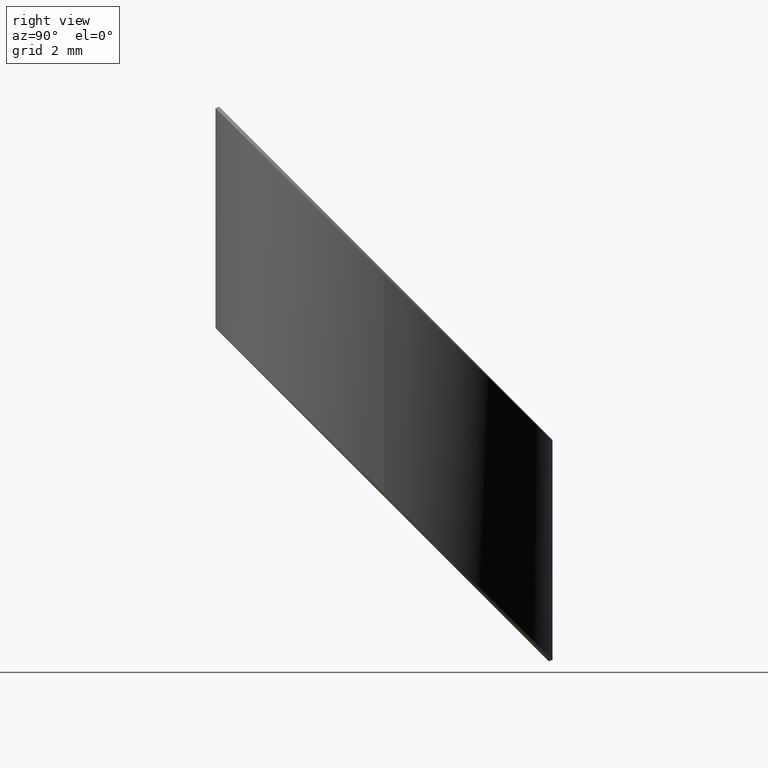
[diagram: clean part render]
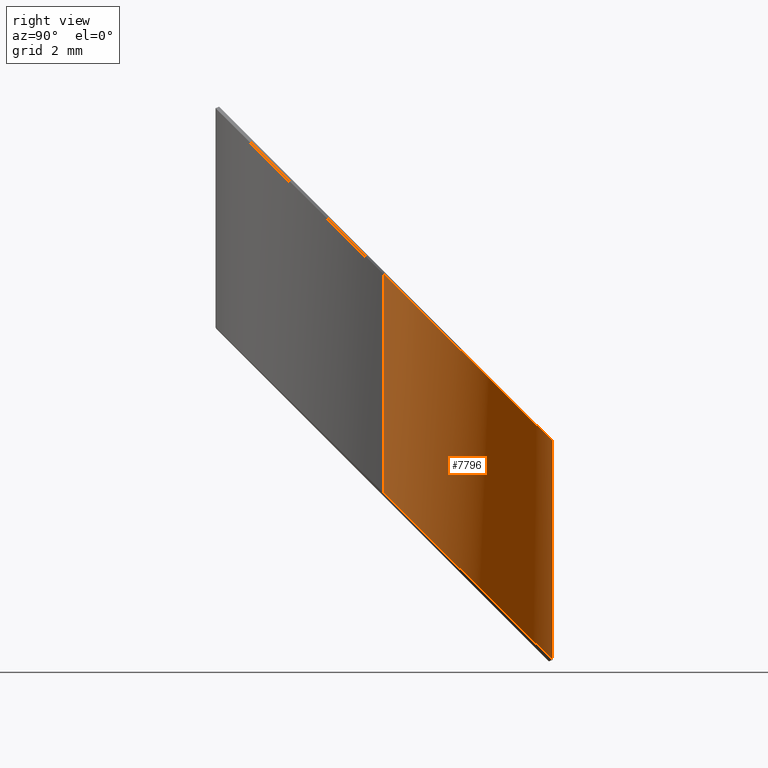
[diagram: same view with one face highlighted and labeled with its STEP entity id]
A machine part, right view. The second image highlights one B-rep face of the part: STEP entity #7796.
In plain terms, the highlighted cylindrical surface (partial cylindrical patch) has radius 6.35 mm, axis along (-0, -0, -1).
Its self-contained STEP definition (entity closure, byte-faithful):
#20 = CARTESIAN_POINT ( 'NONE',  ( 0.1939130182864091900, 0.1577936152862299300, -0.3181418424088710600 ) ) ;
#27 = CARTESIAN_POINT ( 'NONE',  ( -0.1865628848368374200, 0.1665037659775580600, -0.001906112909971192300 ) ) ;
#59 = CARTESIAN_POINT ( 'NONE',  ( 0.1455692265297764400, 0.2032578004067893700, -0.3630102338784608800 ) ) ;
#66 = CARTESIAN_POINT ( 'NONE',  ( -0.1406096565377591400, 0.2067200746838224700, -0.04159564061058928400 ) ) ;
#103 = CARTESIAN_POINT ( 'NONE',  ( 0.03268739277288631300, 0.2483958628721561800, -0.4075570286091403900 ) ) ;
#114 = CARTESIAN_POINT ( 'NONE',  ( -1.512393935234668100E-017, 0.2500000000000001100, -0.08430848201719966200 ) ) ;
#425 = CARTESIAN_POINT ( 'NONE',  ( -0.1031469960265959500, 0.2277661747172334300, -0.3871974972479909100 ) ) ;
#473 = CARTESIAN_POINT ( 'NONE',  ( -0.1617131474373538200, 0.1906963413800108200, -0.3506134675923032700 ) ) ;
#520 = CARTESIAN_POINT ( 'NONE',  ( -0.2019400651408909700, 0.1473919718795792300, -0.3078763479514360900 ) ) ;
#561 = CARTESIAN_POINT ( 'NONE',  ( -0.2241540554442816900, 0.1107776717687900800, -0.2717417401511737500 ) ) ;
#590 = CARTESIAN_POINT ( 'NONE',  ( 0.01638314262248125400, 0.2495960443857892000, -0.08390977447499792200 ) ) ;
#610 = CARTESIAN_POINT ( 'NONE',  ( -0.2379963737949823400, 0.07654278523115459800, -0.2379556172204163900 ) ) ;
#643 = CARTESIAN_POINT ( 'NONE',  ( 0.1214209869862752400, 0.2185711477258786800, -0.05329145924634658800 ) ) ;
#662 = CARTESIAN_POINT ( 'NONE',  ( -0.2449883379168610600, 0.04980953959337251100, -0.2115726736345572300 ) ) ;
#692 = CARTESIAN_POINT ( 'NONE',  ( 0.1738280830776182400, 0.1796887408164880900, -0.01491846240501295900 ) ) ;
#710 = CARTESIAN_POINT ( 'NONE',  ( -0.2487423972882221200, 0.02504581733047150200, -0.1871334305270241400 ) ) ;
#738 = CARTESIAN_POINT ( 'NONE',  ( 0.2067020117914585600, 0.1406248883579020400, 0.02363351343316443300 ) ) ;
#755 = CARTESIAN_POINT ( 'NONE',  ( -0.2498989462178704800, 0.007116983085845101300, -0.1694395139431914300 ) ) ;
#792 = CARTESIAN_POINT ( 'NONE',  ( 0.2293279632564741400, 0.09954790935341992200, 0.06417231798856891400 ) ) ;
#843 = CARTESIAN_POINT ( 'NONE',  ( 0.2398109979389381200, 0.07067263526987026300, 0.09266916737382478700 ) ) ;
#854 = CARTESIAN_POINT ( 'NONE',  ( 0.2497210451207848600, 0.01180908989495714800, -0.1740701405427429700 ) ) ;
#884 = CARTESIAN_POINT ( 'NONE',  ( 0.2461271723671875600, 0.04391791206060902100, 0.1190733853763258100 ) ) ;
#895 = CARTESIAN_POINT ( 'NONE',  ( 0.2475706317967767400, 0.03477094359615235500, -0.1967311071907940600 ) ) ;
#907 = CARTESIAN_POINT ( 'NONE',  ( -0.2473726905152857100, 0.03615298972611003700, 0.1267365169911640300 ) ) ;
#928 = CARTESIAN_POINT ( 'NONE',  ( 0.2491440030876736800, 0.02077135068085946000, 0.1419166855139688800 ) ) ;
#943 = CARTESIAN_POINT ( 'NONE',  ( 0.2427464961914776200, 0.05978616990480096300, -0.2214185670680082800 ) ) ;
#953 = CARTESIAN_POINT ( 'NONE',  ( -0.2419961646997924300, 0.06278766068105243200, 0.1004508410906167600 ) ) ;
#979 = CARTESIAN_POINT ( 'NONE',  ( 0.2499226135237936100, 0.006220491146404503800, 0.1562768042413336400 ) ) ;
#990 = CARTESIAN_POINT ( 'NONE',  ( -0.2499331683993758500, 0.005780963863087154800, 0.1567105746605423900 ) ) ;
#1000 = CARTESIAN_POINT ( 'NONE',  ( 0.2336009041782088300, 0.08909498339762415800, -0.2503433299019479100 ) ) ;
#1007 = CARTESIAN_POINT ( 'NONE',  ( -0.2317325270977309600, 0.09381396308522034500, 0.06983107077840390600 ) ) ;
#1033 = CARTESIAN_POINT ( 'NONE',  ( -0.2489501389028510900, 0.02289565929758648500, 0.1398201479928803400 ) ) ;
#1038 = CARTESIAN_POINT ( 'NONE',  ( 0.2132936663267003300, 0.1304223722701445800, -0.2911290704508509000 ) ) ;
#1047 = CARTESIAN_POINT ( 'NONE',  ( -0.2100629158671886200, 0.1355528493980048500, 0.02863913510831414900 ) ) ;
#1085 = CARTESIAN_POINT ( 'NONE',  ( 0.1865628848344501000, 0.1665037659802264500, -0.3267376887690081100 ) ) ;
#1091 = CARTESIAN_POINT ( 'NONE',  ( -0.1796066712189219900, 0.1739124843623038900, -0.009217887730264823600 ) ) ;
#1137 = CARTESIAN_POINT ( 'NONE',  ( 0.1406096565381898500, 0.2067200746835345700, -0.3664272164666249100 ) ) ;
#1147 = CARTESIAN_POINT ( 'NONE',  ( -0.1319837973409563600, 0.2123605669000091000, -0.04716216268223175100 ) ) ;
#1187 = CARTESIAN_POINT ( 'NONE',  ( -1.539072138297795800E-017, 0.2500000000000001100, -0.4091400578733957500 ) ) ;
#1515 = CARTESIAN_POINT ( 'NONE',  ( -0.1142773814286646400, 0.2223894844472616400, -0.3818913009436333300 ) ) ;
#1553 = CARTESIAN_POINT ( 'NONE',  ( -0.1708425446996163500, 0.1825296440669847700, -0.3425536670647095200 ) ) ;
#1602 = CARTESIAN_POINT ( 'NONE',  ( -0.2055252598055119200, 0.1423392022114233200, -0.3028898798967443200 ) ) ;
#1651 = CARTESIAN_POINT ( 'NONE',  ( -0.2280736985650150300, 0.1024206213420636300, -0.2634942375594743200 ) ) ;
#1681 = CARTESIAN_POINT ( 'NONE',  ( 0.04078235764173276900, 0.2467856742462387100, -0.08113622911537246600 ) ) ;
#1699 = CARTESIAN_POINT ( 'NONE',  ( -0.2389471269300531300, 0.07352043633567383100, -0.2349728902590148800 ) ) ;
#1708 = EDGE_CURVE ( 'NONE', #7492, #9793, #7329, .T. ) ;
#1730 = CARTESIAN_POINT ( 'NONE',  ( 0.1319740630390742700, 0.2123371648628849000, -0.04713906383031077300 ) ) ;
#1744 = CARTESIAN_POINT ( 'NONE',  ( -0.2455763544766368700, 0.04686201867805998200, -0.2086637794164712100 ) ) ;
#1780 = CARTESIAN_POINT ( 'NONE',  ( 0.1796166402051059500, 0.1739367503881679200, -0.009241898807147331700 ) ) ;
#1799 = CARTESIAN_POINT ( 'NONE',  ( -0.2489743354909374800, 0.02269545896340257800, -0.1848138710889330700 ) ) ;
#1819 = EDGE_CURVE ( 'NONE', #7492, #3554, #5039, .T. ) ;
#1830 = CARTESIAN_POINT ( 'NONE',  ( 0.2100777179126535900, 0.1355845883325156000, 0.02860774141192444200 ) ) ;
#1851 = CARTESIAN_POINT ( 'NONE',  ( -0.2499176324444323000, 0.006418463523966648000, -0.1687501496564254900 ) ) ;
#1877 = CARTESIAN_POINT ( 'NONE',  ( 0.2305869987499860900, 0.09659522274906422200, 0.06708624679437021100 ) ) ;
#1892 = CARTESIAN_POINT ( 'NONE',  ( 0.2499890269380927200, 0.002555823058630899700, -0.1649380887160701300 ) ) ;
#1920 = CARTESIAN_POINT ( 'NONE',  ( 0.2415962538579925500, 0.06428949797132516000, 0.09896870062222261300 ) ) ;
#1933 = CARTESIAN_POINT ( 'NONE',  ( 0.2495873755207513900, 0.01453631975585638700, -0.1767616365978762800 ) ) ;
#1967 = CARTESIAN_POINT ( 'NONE',  ( 0.2469735746602846100, 0.03878574309921135900, 0.1241382718761019500 ) ) ;
#1972 = VECTOR ( 'NONE', #10336, 39.37007874015748100 ) ;
#1982 = CARTESIAN_POINT ( 'NONE',  ( 0.2473726905157508900, 0.03615298972297392700, -0.1980950588619649600 ) ) ;
#1990 = CARTESIAN_POINT ( 'NONE',  ( -0.2464782918088582200, 0.04190132150371966200, 0.1210635563037069200 ) ) ;
#2015 = CARTESIAN_POINT ( 'NONE',  ( 0.2494826343891964600, 0.01613905698881759600, 0.1464882658031289900 ) ) ;
#2026 = CARTESIAN_POINT ( 'NONE',  ( 0.2419961646979702200, 0.06278766068832714000, -0.2243807347727589100 ) ) ;
#2035 = CARTESIAN_POINT ( 'NONE',  ( -0.2403695769277224600, 0.06872759013235983600, 0.09458875376347541900 ) ) ;
#2060 = CARTESIAN_POINT ( 'NONE',  ( 0.2500000000000001100, 0.002726018428246263300, 0.1597254883019551800 ) ) ;
#2067 = CARTESIAN_POINT ( 'NONE',  ( -0.2499281884146981600, 0.005993395272974331000, 0.1565009244323157000 ) ) ;
#2071 = CARTESIAN_POINT ( 'NONE',  ( 0.2317325270982650300, 0.09381396308390527200, -0.2550005050764904700 ) ) ;
#2080 = CARTESIAN_POINT ( 'NONE',  ( -0.2293504854501309000, 0.09958042992762940200, 0.06414014347067313600 ) ) ;
#2111 = CARTESIAN_POINT ( 'NONE',  ( -0.2488406073480426700, 0.02405006087684922300, 0.1386808549566779200 ) ) ;
#2118 = CARTESIAN_POINT ( 'NONE',  ( 0.2100629158658672800, 0.1355528494000485300, -0.2961924407500158300 ) ) ;
#2129 = CARTESIAN_POINT ( 'NONE',  ( -0.2084480311864483300, 0.1380235868782939700, 0.02620071630900373800 ) ) ;
#2153 = VECTOR ( 'NONE', #4497, 39.37007874015748100 ) ;
#2174 = CARTESIAN_POINT ( 'NONE',  ( 0.1796066712176742600, 0.1739124843635866100, -0.3340494635878815100 ) ) ;
#2181 = CARTESIAN_POINT ( 'NONE',  ( -0.1738416203042318600, 0.1797117702890420600, -0.01494124960925164200 ) ) ;
#2217 = CARTESIAN_POINT ( 'NONE',  ( 0.1319837973396362200, 0.2123605669008295800, -0.3719937385389107700 ) ) ;
#2224 = CARTESIAN_POINT ( 'NONE',  ( -0.1214842966172377200, 0.2185373080231163800, -0.05325802307386286200 ) ) ;
#2277 = ORIENTED_EDGE ( 'NONE', *, *, #5965, .T. ) ;
#2498 = CARTESIAN_POINT ( 'NONE',  ( -1.539072138297795800E-017, 0.2500000000000001100, -0.4091400578733957500 ) ) ;
#2541 = CARTESIAN_POINT ( 'NONE',  ( -0.03262542754643328600, 0.2479963189499022900, -0.4071626758220190400 ) ) ;
#2571 = AXIS2_PLACEMENT_3D ( 'NONE', #3545, #4705, #12247 ) ;
#2580 = CARTESIAN_POINT ( 'NONE',  ( -0.1267359690183612900, 0.2155628111490132400, -0.3751539795364438000 ) ) ;
#2630 = CARTESIAN_POINT ( 'NONE',  ( -0.1753567228434285100, 0.1781966677498454400, -0.3382775511016975500 ) ) ;
#2680 = CARTESIAN_POINT ( 'NONE',  ( -0.2073148243666238200, 0.1397195507351349500, -0.3003046014800647100 ) ) ;
#2725 = CARTESIAN_POINT ( 'NONE',  ( -0.2301554979295760400, 0.09761940258364998300, -0.2587560695365408400 ) ) ;
#2756 = CARTESIAN_POINT ( 'NONE',  ( 0.06478895529499158200, 0.2415957927467245200, -0.07601435136992680500 ) ) ;
#2779 = CARTESIAN_POINT ( 'NONE',  ( -0.2406543351671441600, 0.06777051237940569200, -0.2292982698373420000 ) ) ;
#2812 = CARTESIAN_POINT ( 'NONE',  ( 0.1372127816177834100, 0.2089897939410339800, -0.04383562012389875800 ) ) ;
#2833 = CARTESIAN_POINT ( 'NONE',  ( -0.2467268290574820300, 0.04034595816155753200, -0.2022330612464186000 ) ) ;
#2863 = CARTESIAN_POINT ( 'NONE',  ( 0.1885799220906563300, 0.1641495577649878200, 0.0004171657636240754800 ) ) ;
#2877 = CARTESIAN_POINT ( 'NONE',  ( 0.2500000000000001100, 3.637868835736454700E-016, 0.1624157879280981000 ) ) ;
#2881 = CARTESIAN_POINT ( 'NONE',  ( -0.2493738767674407200, 0.01771201306717580200, -0.1798956342454740800 ) ) ;
#2916 = CARTESIAN_POINT ( 'NONE',  ( 0.2153982946573688400, 0.1269163422982057500, 0.03716259635875802900 ) ) ;
#2928 = CARTESIAN_POINT ( 'NONE',  ( -0.2499581630307558000, 0.004772364811415499300, -0.1671256206133195100 ) ) ;
#2959 = CARTESIAN_POINT ( 'NONE',  ( 0.2328637189455223200, 0.09100456920301872000, 0.07260367570542838900 ) ) ;
#2978 = CARTESIAN_POINT ( 'NONE',  ( 0.2499546688939769900, 0.004792714061995636900, -0.1671456827861532200 ) ) ;
#3013 = CARTESIAN_POINT ( 'NONE',  ( 0.2422507273387055300, 0.06176454042680222500, 0.1014605608589156500 ) ) ;
#3029 = CARTESIAN_POINT ( 'NONE',  ( 0.2492207342004537600, 0.01975022697341182300, -0.1819071440600691900 ) ) ;
#3059 = CARTESIAN_POINT ( 'NONE',  ( 0.2472240787833963600, 0.03715484864352853300, 0.1257477855429232100 ) ) ;
#3072 = CARTESIAN_POINT ( 'NONE',  ( 0.2464782918051241200, 0.04190132152559793200, -0.2037680195739624000 ) ) ;
#3081 = CARTESIAN_POINT ( 'NONE',  ( -0.2455723813363117900, 0.04684494449151610500, 0.1161846615400074200 ) ) ;
#3103 = CARTESIAN_POINT ( 'NONE',  ( 0.2496411516259412800, 0.01339306294960955800, 0.1491982245039477100 ) ) ;
#3118 = CARTESIAN_POINT ( 'NONE',  ( 0.2403695769248804200, 0.06872759014227204600, -0.2302428221025925000 ) ) ;
#3125 = CARTESIAN_POINT ( 'NONE',  ( -0.2395391694659981500, 0.07156873365376381600, 0.09178481536374498400 ) ) ;
#3156 = CARTESIAN_POINT ( 'NONE',  ( -0.2498455345728032900, 0.008888543325631428600, 0.1536437284003701100 ) ) ;
#3162 = CARTESIAN_POINT ( 'NONE',  ( 0.2293504854504650500, 0.09958042992682265800, -0.2606914323847464600 ) ) ;
#3172 = CARTESIAN_POINT ( 'NONE',  ( -0.2250307201209487100, 0.1089282253849077900, 0.05491505805132835400 ) ) ;
#3210 = CARTESIAN_POINT ( 'NONE',  ( 0.2084480311867115400, 0.1380235868778999500, -0.2986308595468464300 ) ) ;
#3216 = CARTESIAN_POINT ( 'NONE',  ( -0.2031601627783386500, 0.1457486925996621100, 0.01857696664793224300 ) ) ;
#3253 = CARTESIAN_POINT ( 'NONE',  ( 0.1738416203044208500, 0.1797117702888531000, -0.3397728254650592100 ) ) ;
#3261 = CARTESIAN_POINT ( 'NONE',  ( -0.1647796033791919200, 0.1880207548358840400, -0.02314125253956856100 ) ) ;
#3298 = CARTESIAN_POINT ( 'NONE',  ( 0.1214842966155940500, 0.2185373080239949300, -0.3780895989307633300 ) ) ;
#3309 = CARTESIAN_POINT ( 'NONE',  ( -0.1105446711949595500, 0.2242690544971155100, -0.05891462273130421800 ) ) ;
#3545 = CARTESIAN_POINT ( 'NONE',  ( 0.0000000000000000000, 0.0000000000000000000, 0.9842519685039370400 ) ) ;
#3554 = VERTEX_POINT ( 'NONE', #7556 ) ;
#3624 = CARTESIAN_POINT ( 'NONE',  ( -0.05676280336633195800, 0.2436069659553765400, -0.4028308354457900100 ) ) ;
#3676 = CARTESIAN_POINT ( 'NONE',  ( -0.1354475824129915400, 0.2101384717645191100, -0.3698007943934765700 ) ) ;
#3720 = CARTESIAN_POINT ( 'NONE',  ( -0.1838133546150479700, 0.1695347021318853500, -0.3297289133892715700 ) ) ;
#3767 = CARTESIAN_POINT ( 'NONE',  ( -0.2122402588753058700, 0.1321771752125723600, -0.2928608905989066900 ) ) ;
#3823 = CARTESIAN_POINT ( 'NONE',  ( -0.2317356518859288500, 0.09382212876980883200, -0.2550085770661421600 ) ) ;
#3831 = CARTESIAN_POINT ( 'NONE',  ( 0.2500000000000001100, 3.061616997868384300E-017, 0.9842519685039370400 ) ) ;
#3851 = CARTESIAN_POINT ( 'NONE',  ( 0.08033627799269314800, 0.2367758762477981400, -0.07125757572096569300 ) ) ;
#3871 = CARTESIAN_POINT ( 'NONE',  ( -0.2419902710685372700, 0.06277724156445320400, -0.2243704419350476000 ) ) ;
#3901 = CARTESIAN_POINT ( 'NONE',  ( 0.1472410859868292200, 0.2021123534736197500, -0.03704817107273601600 ) ) ;
#3916 = CARTESIAN_POINT ( 'NONE',  ( -0.2471356767637236700, 0.03773907416422570700, -0.1996603574432006800 ) ) ;
#3948 = CARTESIAN_POINT ( 'NONE',  ( 0.1919279527743496000, 0.1602021705937943200, 0.004312749638067497500 ) ) ;
#3970 = CARTESIAN_POINT ( 'NONE',  ( -0.2495958673318329200, 0.01422821405401603600, -0.1764575466944604000 ) ) ;
#4007 = CARTESIAN_POINT ( 'NONE',  ( 0.2184785088459647000, 0.1215246083969340100, 0.04248356586998695100 ) ) ;
#4028 = CARTESIAN_POINT ( 'NONE',  ( -0.2500000000000001100, 1.990193948509316800E-016, -0.1624157879280985200 ) ) ;
#4057 = CARTESIAN_POINT ( 'NONE',  ( 0.2346777603753345500, 0.08618246549395502900, 0.07736259121278836500 ) ) ;
#4070 = CARTESIAN_POINT ( 'NONE',  ( 0.2499331683992323200, 0.005780963869266865200, -0.1681210012017511900 ) ) ;
#4100 = CARTESIAN_POINT ( 'NONE',  ( 0.2429866629728030000, 0.05883336991775607600, 0.1043533183363854900 ) ) ;
#4107 = CARTESIAN_POINT ( 'NONE',  ( -0.2499890269382985000, 0.002555823038516065400, 0.1598934871599668700 ) ) ;
#4112 = CARTESIAN_POINT ( 'NONE',  ( 0.2489501389003586900, 0.02289565932444449400, -0.1850114278898181100 ) ) ;
#4143 = CARTESIAN_POINT ( 'NONE',  ( 0.2479771299734699300, 0.03185479260701698500, 0.1309784651767585700 ) ) ;
#4161 = CARTESIAN_POINT ( 'NONE',  ( 0.2455723813343023100, 0.04684494450202556600, -0.2086469143265422800 ) ) ;
#4171 = CARTESIAN_POINT ( 'NONE',  ( -0.2452996667686258800, 0.04825302171953039400, 0.1147950222741817700 ) ) ;
#4199 = CARTESIAN_POINT ( 'NONE',  ( 0.2496877162360042500, 0.01249383757505821400, 0.1500856591488297400 ) ) ;
#4214 = CARTESIAN_POINT ( 'NONE',  ( 0.2395391694667983700, 0.07156873365112570400, -0.2330467604898991100 ) ) ;
#4220 = CARTESIAN_POINT ( 'NONE',  ( -0.2376876969454763100, 0.07753614471080200200, 0.08589562808115651400 ) ) ;
#4253 = CARTESIAN_POINT ( 'NONE',  ( -0.2497427576124240900, 0.01134063492534840100, 0.1512237542733443600 ) ) ;
#4258 = CARTESIAN_POINT ( 'NONE',  ( 0.2250307201215193700, 0.1089282253837287300, -0.2699165178037029600 ) ) ;
#4267 = CARTESIAN_POINT ( 'NONE',  ( -0.2223263702934939200, 0.1143327489885293300, 0.04958120158366852200 ) ) ;
#4305 = CARTESIAN_POINT ( 'NONE',  ( 0.2031601627766810600, 0.1457486926019727600, -0.3062546092103424200 ) ) ;
#4311 = CARTESIAN_POINT ( 'NONE',  ( -0.1976532439752399500, 0.1531024004465943400, 0.01131958689465946600 ) ) ;
#4357 = CARTESIAN_POINT ( 'NONE',  ( 0.1647796033794685900, 0.1880207548356422100, -0.3479728283952299700 ) ) ;
#4364 = CARTESIAN_POINT ( 'NONE',  ( -0.1601983743834444500, 0.1919394834982728900, -0.02700871897961025500 ) ) ;
#4407 = CARTESIAN_POINT ( 'NONE',  ( 0.1105446711974673500, 0.2242690544958794400, -0.3837461985864445400 ) ) ;
#4414 = CARTESIAN_POINT ( 'NONE',  ( -0.09947179219835224100, 0.2293954846709828100, -0.06397392498204591800 ) ) ;
#4497 = DIRECTION ( 'NONE',  ( -0.0000000000000000000, -0.0000000000000000000, -1.000000000000000000 ) ) ;
#4519 = LINE ( 'NONE', #3831, #1972 ) ;
#4589 = CARTESIAN_POINT ( 'NONE',  ( -1.539072138297795800E-017, 0.2500000000000001100, -0.4091400578733957500 ) ) ;
#4609 = B_SPLINE_CURVE_WITH_KNOTS ( 'NONE', 3,
 ( #12461, #13552, #590, #8166, #1681, #9266, #2756, #10356, #3851, #11432, #4952, #12511, #6033, #13595, #7122, #643, #8215, #1730, #9316, #2812, #10403, #3901, #11490, #5002, #12560, #6085, #13656, #7171, #692, #8277, #1780, #9361, #2863, #10459, #3948, #11538, #5055, #12609, #6130, #13707, #7229, #738, #8323, #1830, #9408, #2916, #10511, #4007, #11580, #5103, #12661, #6177, #13752, #7283, #792, #8368, #1877, #9464, #2959, #10556, #4057, #11632, #5147, #12709, #6229, #13800, #7331, #843, #8414, #1920, #9513, #3013, #10595, #4100, #11679, #5191, #12749, #6276, #13849, #7375, #884, #8465, #1967, #9554, #3059, #10645, #4143, #11717, #5238, #12798, #6321, #13893, #7426, #928, #8506, #2015, #9602, #3103, #10690, #4199, #11762, #5279, #12850, #6371, #13937, #7474, #979, #8553, #2060, #9653 ),
 .UNSPECIFIED., .F., .F.,
 ( 4, 2, 2, 2, 2, 2, 2, 2, 1, 2, 2, 1, 2, 2, 1, 2, 2, 1, 1, 2, 2, 2, 1, 2, 2, 2, 1, 2, 2, 2, 1, 2, 2, 1, 2, 2, 1, 2, 2, 1, 1, 2, 2, 1, 1, 2, 2, 1, 1, 2, 2, 1, 1, 1, 2, 2, 2, 1, 1, 2, 2, 1, 1, 1, 2, 2, 4 ),
 ( 0.0000000000000000000, 0.01562499999999997200, 0.03124999999999994400, 0.04687499999999991700, 0.05468749999999989600, 0.06249999999999987500, 0.07031249999999984700, 0.07812499999999983300, 0.08593749999999982000, 0.08984374999999980600, 0.09374999999999977800, 0.1015624999999997400, 0.1054687499999997200, 0.1093749999999996900, 0.1171874999999996100, 0.1210937499999995700, 0.1249999999999995100, 0.1328124999999994700, 0.1367187499999994200, 0.1386718749999994200, 0.1406249999999994200, 0.1484374999999994200, 0.1523437499999994200, 0.1542968749999994200, 0.1562499999999994200, 0.1640624999999994400, 0.1679687499999994200, 0.1699218749999994200, 0.1718749999999994200, 0.1796874999999994400, 0.1835937499999994400, 0.1855468749999994700, 0.1874999999999995000, 0.1914062499999995600, 0.1933593749999995800, 0.1953124999999996100, 0.1992187499999996400, 0.2011718749999996700, 0.2031249999999996900, 0.2070312499999997500, 0.2089843749999997800, 0.2099609374999998100, 0.2109374999999998100, 0.2148437499999998600, 0.2167968749999998900, 0.2177734374999998900, 0.2187499999999998900, 0.2226562499999999400, 0.2246093749999999700, 0.2255859375000000000, 0.2265625000000000000, 0.2304687500000000300, 0.2324218750000000600, 0.2333984375000000800, 0.2338867187500001100, 0.2343750000000001400, 0.2382812500000003100, 0.2402343750000003900, 0.2412109375000004200, 0.2416992187500004200, 0.2421875000000003900, 0.2441406250000003900, 0.2451171875000004200, 0.2456054687500004200, 0.2458496093750004200, 0.2460937500000004200, 0.2500000000000000000 ),
 .UNSPECIFIED. ) ;
#4661 = CARTESIAN_POINT ( 'NONE',  ( -0.2500000000000001100, -2.314627312100812000E-017, 0.1624157879280985200 ) ) ;
#4705 = DIRECTION ( 'NONE',  ( -0.0000000000000000000, -0.0000000000000000000, -1.000000000000000000 ) ) ;
#4739 = CARTESIAN_POINT ( 'NONE',  ( -0.07646227632049978900, 0.2380547295269527800, -0.3973513268519183200 ) ) ;
#4784 = CARTESIAN_POINT ( 'NONE',  ( -0.1422521115286263500, 0.2056226213451810300, -0.3653441710555976900 ) ) ;
#4833 = CARTESIAN_POINT ( 'NONE',  ( -0.1905928644357154100, 0.1617882398238706900, -0.3220840840118811000 ) ) ;
#4884 = CARTESIAN_POINT ( 'NONE',  ( -0.2169558587024751900, 0.1242485130119710800, -0.2850361501177302000 ) ) ;
#4925 = CARTESIAN_POINT ( 'NONE',  ( -0.2339570409551093000, 0.08812021085384313900, -0.2493813358246244900 ) ) ;
#4952 = CARTESIAN_POINT ( 'NONE',  ( 0.09192130506168652600, 0.2325229988455133900, -0.06706045987204745100 ) ) ;
#4970 = CARTESIAN_POINT ( 'NONE',  ( -0.2423881008799516300, 0.06122296374090107500, -0.2228365368090080600 ) ) ;
#5002 = CARTESIAN_POINT ( 'NONE',  ( 0.1553860207116675700, 0.1958556081872241900, -0.03087349979144157800 ) ) ;
#5024 = CARTESIAN_POINT ( 'NONE',  ( -0.2475743223227701300, 0.03479369849253621800, -0.1967535806222341100 ) ) ;
#5039 = LINE ( 'NONE', #6624, #2153 ) ;
#5055 = CARTESIAN_POINT ( 'NONE',  ( 0.1957901146583658800, 0.1555063667391323500, 0.008946994668307698900 ) ) ;
#5076 = CARTESIAN_POINT ( 'NONE',  ( -0.2496705844119079300, 0.01283269261350241700, -0.1750803297473899600 ) ) ;
#5103 = CARTESIAN_POINT ( 'NONE',  ( 0.2200149755413821100, 0.1187197751341872300, 0.04525159111018656200 ) ) ;
#5147 = CARTESIAN_POINT ( 'NONE',  ( 0.2360579763635533000, 0.08234446076796943200, 0.08115029596934500400 ) ) ;
#5163 = CARTESIAN_POINT ( 'NONE',  ( 0.2499281884148298300, 0.005993395267611743800, -0.1683306514185879100 ) ) ;
#5191 = CARTESIAN_POINT ( 'NONE',  ( 0.2444561654507960400, 0.05237447347731369300, 0.1107275971193806400 ) ) ;
#5206 = CARTESIAN_POINT ( 'NONE',  ( 0.2488406073472183300, 0.02405006088534156200, -0.1861507209079017500 ) ) ;
#5213 = CARTESIAN_POINT ( 'NONE',  ( -0.2485824939308679000, 0.02667389308773649600, 0.1360913995513170500 ) ) ;
#5238 = CARTESIAN_POINT ( 'NONE',  ( 0.2486044512755910000, 0.02638810613764517400, 0.1363734561832161700 ) ) ;
#5250 = CARTESIAN_POINT ( 'NONE',  ( 0.2452996667686019900, 0.04825302171965041600, -0.2100365535821320500 ) ) ;
#5260 = CARTESIAN_POINT ( 'NONE',  ( -0.2441340090149327900, 0.05390609934572547500, 0.1092160623542111400 ) ) ;
#5279 = CARTESIAN_POINT ( 'NONE',  ( 0.2498071386803786500, 0.009912050115500515800, 0.1526336321571281100 ) ) ;
#5290 = CARTESIAN_POINT ( 'NONE',  ( 0.2376876969424780700, 0.07753614471997402600, -0.2389359477839732800 ) ) ;
#5300 = CARTESIAN_POINT ( 'NONE',  ( -0.2360547626983335600, 0.08233571236563369500, 0.08115894047583688300 ) ) ;
#5332 = CARTESIAN_POINT ( 'NONE',  ( -0.2497128001173948800, 0.01198324343950215400, 0.1505895629038825300 ) ) ;
#5337 = CARTESIAN_POINT ( 'NONE',  ( 0.2223263702938313400, 0.1143327489878745900, -0.2752503742718723800 ) ) ;
#5345 = CARTESIAN_POINT ( 'NONE',  ( -0.2209754992518797900, 0.1169227616654422700, 0.04702505861987497200 ) ) ;
#5390 = CARTESIAN_POINT ( 'NONE',  ( 0.1976532439737108400, 0.1531024004485567200, -0.3135119889633557500 ) ) ;
#5397 = CARTESIAN_POINT ( 'NONE',  ( -0.1945188000095322000, 0.1570460063507242400, 0.007427560132735271300 ) ) ;
#5434 = CARTESIAN_POINT ( 'NONE',  ( 0.1601983743835114500, 0.1919394834982179600, -0.3518402948356386100 ) ) ;
#5442 = CARTESIAN_POINT ( 'NONE',  ( -0.1505287378363174300, 0.1996755837954926100, -0.03464332850582467500 ) ) ;
#5476 = CARTESIAN_POINT ( 'NONE',  ( 0.09947179220012945800, 0.2293954846702468100, -0.3888055008375155300 ) ) ;
#5483 = CARTESIAN_POINT ( 'NONE',  ( -0.06485776823518002400, 0.2419967773294588200, -0.07641003595202167100 ) ) ;
#5802 = CARTESIAN_POINT ( 'NONE',  ( -0.08803967110123793500, 0.2340208312245251900, -0.3933701840654240700 ) ) ;
#5856 = CARTESIAN_POINT ( 'NONE',  ( -0.1521408736803265300, 0.1983869684399201000, -0.3582032240009380700 ) ) ;
#5906 = CARTESIAN_POINT ( 'NONE',  ( -0.1926182380108222300, 0.1593713096168944700, -0.3196988644805745500 ) ) ;
#5943 = EDGE_CURVE ( 'NONE', #9699, #3554, #11902, .T. ) ;
#5949 = CARTESIAN_POINT ( 'NONE',  ( -0.2194855408969575400, 0.1196962263847741700, -0.2805436252898294600 ) ) ;
#5965 = EDGE_CURVE ( 'NONE', #12421, #9699, #9399, .T. ) ;
#6000 = CARTESIAN_POINT ( 'NONE',  ( -0.2350500362607795500, 0.08516146464110707600, -0.2464613665424172100 ) ) ;
#6033 = CARTESIAN_POINT ( 'NONE',  ( 0.1031469960327052500, 0.2277661747144667200, -0.06236592138891959600 ) ) ;
#6052 = CARTESIAN_POINT ( 'NONE',  ( -0.2436846347520946800, 0.05590309798817469400, -0.2175863429739429400 ) ) ;
#6085 = CARTESIAN_POINT ( 'NONE',  ( 0.1617131474419852600, 0.1906963413762099200, -0.02578189173233081200 ) ) ;
#6100 = CARTESIAN_POINT ( 'NONE',  ( -0.2484037043023883100, 0.02824113965238539400, -0.1902868470148993700 ) ) ;
#6130 = CARTESIAN_POINT ( 'NONE',  ( 0.2019400651384232200, 0.1473919718829604100, 0.01695522790127428100 ) ) ;
#6143 = CARTESIAN_POINT ( 'NONE',  ( -0.2497434553148812600, 0.01135924255953068900, -0.1736261887781714600 ) ) ;
#6177 = CARTESIAN_POINT ( 'NONE',  ( 0.2241540554447948000, 0.1107776717677519100, 0.05308983570610738300 ) ) ;
#6229 = CARTESIAN_POINT ( 'NONE',  ( 0.2379963737922925500, 0.07654278523953977900, 0.08687595862746390300 ) ) ;
#6245 = CARTESIAN_POINT ( 'NONE',  ( 0.2498455345701053300, 0.008888543400682744400, -0.1711878475299294400 ) ) ;
#6276 = CARTESIAN_POINT ( 'NONE',  ( 0.2449883379166413500, 0.04980953959445762900, 0.1132589022205772200 ) ) ;
#6289 = CARTESIAN_POINT ( 'NONE',  ( 0.2485824939289879000, 0.02667389310682311300, -0.1887401763237002200 ) ) ;
#6299 = CARTESIAN_POINT ( 'NONE',  ( -0.2477738160802376000, 0.03331424559658464200, 0.1295380993085107100 ) ) ;
#6321 = CARTESIAN_POINT ( 'NONE',  ( 0.2487423972881599400, 0.02504581733109050000, 0.1376981453285642000 ) ) ;
#6336 = CARTESIAN_POINT ( 'NONE',  ( 0.2441340090151182800, 0.05390609934488826300, -0.2156155135011649000 ) ) ;
#6343 = CARTESIAN_POINT ( 'NONE',  ( -0.2429825305381717900, 0.05881953228640215300, 0.1043669861564549700 ) ) ;
#6371 = CARTESIAN_POINT ( 'NONE',  ( 0.2498989462168086400, 0.007116983123777700200, 0.1553920618755655300 ) ) ;
#6382 = CARTESIAN_POINT ( 'NONE',  ( -0.2499670703212479000, 0.004089646714901966400, 0.1583797581588193000 ) ) ;
#6389 = CARTESIAN_POINT ( 'NONE',  ( 0.2360547626967395000, 0.08233571237018706700, -0.2436726353848266100 ) ) ;
#6396 = CARTESIAN_POINT ( 'NONE',  ( -0.2346823770355623600, 0.08618900333966809900, 0.07735612887350337700 ) ) ;
#6426 = CARTESIAN_POINT ( 'NONE',  ( -0.2494505913753245200, 0.01669088811773953400, 0.1459436878947309700 ) ) ;
#6431 = CARTESIAN_POINT ( 'NONE',  ( 0.2209754992522196800, 0.1169227616648064000, -0.2778065172356893900 ) ) ;
#6439 = CARTESIAN_POINT ( 'NONE',  ( -0.2164516727098314800, 0.1251615217059455500, 0.03889441650841592200 ) ) ;
#6472 = CARTESIAN_POINT ( 'NONE',  ( 0.1945188000089730600, 0.1570460063514145500, -0.3174040157241107000 ) ) ;
#6479 = CARTESIAN_POINT ( 'NONE',  ( -0.1906109935590822000, 0.1618171440580566400, 0.002718906385436658800 ) ) ;
#6518 = CARTESIAN_POINT ( 'NONE',  ( 0.1505287378360748400, 0.1996755837956750200, -0.3594749043626090900 ) ) ;
#6527 = CARTESIAN_POINT ( 'NONE',  ( -0.1422443886174565600, 0.2055983147925337100, -0.04048854849126573600 ) ) ;
#6559 = CARTESIAN_POINT ( 'NONE',  ( 0.2500000000000001100, 1.652727872720702100E-019, -0.1624157879280981000 ) ) ;
#6572 = CARTESIAN_POINT ( 'NONE',  ( 0.06485776823517824800, 0.2419967773294591800, -0.4012416118082182700 ) ) ;
#6580 = CARTESIAN_POINT ( 'NONE',  ( -0.01634836905261626400, 0.2500000000000000600, -0.08430866289537608500 ) ) ;
#6624 = CARTESIAN_POINT ( 'NONE',  ( -0.2500000000000001100, 0.0000000000000000000, 0.9842519685039370400 ) ) ;
#6905 = CARTESIAN_POINT ( 'NONE',  ( -0.09942041111672905700, 0.2294167674118405600, -0.3888265464823693100 ) ) ;
#6944 = CARTESIAN_POINT ( 'NONE',  ( -0.1570409078426894000, 0.1945307493210217100, -0.3543976077450034500 ) ) ;
#6991 = CARTESIAN_POINT ( 'NONE',  ( -0.1982822176359097800, 0.1523184010683462100, -0.3127382378885296100 ) ) ;
#7042 = CARTESIAN_POINT ( 'NONE',  ( -0.2223416782695545300, 0.1143668204964249600, -0.2752840793971199100 ) ) ;
#7094 = CARTESIAN_POINT ( 'NONE',  ( -0.2370450236545458600, 0.07947957650945161600, -0.2408539105514294100 ) ) ;
#7122 = CARTESIAN_POINT ( 'NONE',  ( 0.1142773814267254400, 0.2223894844482980600, -0.05705972508862009600 ) ) ;
#7140 = CARTESIAN_POINT ( 'NONE',  ( -0.2447768522268375100, 0.05083865226076330500, -0.2125882946439634200 ) ) ;
#7171 = CARTESIAN_POINT ( 'NONE',  ( 0.1708425447056227400, 0.1825296440613460600, -0.01772209120332109100 ) ) ;
#7191 = CARTESIAN_POINT ( 'NONE',  ( -0.2486876141999871400, 0.02558405202389522200, -0.1876646089136022300 ) ) ;
#7229 = CARTESIAN_POINT ( 'NONE',  ( 0.2055252598041731900, 0.1423392022133601900, 0.02194169595749132000 ) ) ;
#7250 = CARTESIAN_POINT ( 'NONE',  ( -0.2498706253331710900, 0.008073667334231388700, -0.1703836572268258300 ) ) ;
#7283 = CARTESIAN_POINT ( 'NONE',  ( 0.2280736985654273400, 0.1024206213411381300, 0.06133733829767092800 ) ) ;
#7298 = CARTESIAN_POINT ( 'NONE',  ( 0.2500000000000001100, 1.652727872720702100E-019, -0.1624157879280981000 ) ) ;
#7329 = B_SPLINE_CURVE_WITH_KNOTS ( 'NONE', 3,
 ( #12859, #11772, #4107, #6382, #13946, #7480, #990, #8563, #2067, #9660, #3156, #10745, #4253, #11823, #5332, #12899, #6426, #13997, #7524, #1033, #8618, #2111, #11698, #5213, #12777, #6299, #13872, #7401, #907, #8483, #1990, #9576, #3081, #10670, #4171, #11739, #5260, #12822, #6343, #13913, #7453, #953, #8529, #2035, #9627, #3125, #10714, #4220, #11790, #5300, #12869, #6396, #13961, #7494, #1007, #8579, #2080, #9675, #3172, #10756, #4267, #11837, #5345, #12913, #6439, #14013, #7540, #1047, #8634, #2129, #9716, #3216, #10810, #4311, #11879, #5397, #12964, #6479, #27, #7591, #1091, #8680, #2181, #9760, #3261, #10854, #4364, #11923, #5442, #13017, #6527, #66, #7638, #1147, #8724, #2224, #9817, #3309, #10898, #4414, #11980, #5483, #13060, #6580, #114 ),
 .UNSPECIFIED., .F., .F.,
 ( 4, 2, 1, 1, 2, 2, 1, 1, 2, 2, 2, 1, 1, 2, 2, 1, 1, 2, 2, 1, 1, 2, 2, 1, 1, 2, 2, 1, 2, 2, 1, 2, 2, 1, 2, 2, 2, 1, 2, 2, 2, 1, 2, 2, 2, 1, 2, 2, 1, 2, 2, 1, 2, 2, 1, 2, 2, 2, 2, 2, 2, 2, 4 ),
 ( 0.7500000000000000000, 0.7519531249999998900, 0.7529296874999998900, 0.7534179687499997800, 0.7536621093749997800, 0.7539062499999997800, 0.7558593749999996700, 0.7568359374999995600, 0.7573242187499995600, 0.7578124999999995600, 0.7617187499999995600, 0.7636718749999995600, 0.7646484374999995600, 0.7651367187499995600, 0.7656249999999995600, 0.7695312499999994400, 0.7714843749999994400, 0.7724609374999994400, 0.7734374999999993300, 0.7773437499999993300, 0.7792968749999992200, 0.7802734374999992200, 0.7812499999999992200, 0.7851562499999992200, 0.7871093749999992200, 0.7880859374999992200, 0.7890624999999992200, 0.7929687499999992200, 0.7949218749999993300, 0.7968749999999993300, 0.8007812499999993300, 0.8027343749999993300, 0.8046874999999993300, 0.8085937499999994400, 0.8105468749999994400, 0.8124999999999994400, 0.8203124999999995600, 0.8242187499999995600, 0.8261718749999995600, 0.8281249999999995600, 0.8359374999999996700, 0.8398437499999997800, 0.8417968749999997800, 0.8437499999999997800, 0.8515624999999997800, 0.8554687499999998900, 0.8574218749999998900, 0.8593749999999998900, 0.8671874999999998900, 0.8710937499999998900, 0.8750000000000000000, 0.8828124999999998900, 0.8867187499999998900, 0.8906249999999998900, 0.8984374999999998900, 0.9023437499999998900, 0.9062499999999998900, 0.9140624999999998900, 0.9218749999999998900, 0.9296874999999998900, 0.9375000000000000000, 0.9687500000000000000, 1.000000000000000000 ),
 .UNSPECIFIED. ) ;
#7331 = CARTESIAN_POINT ( 'NONE',  ( 0.2389471269301090300, 0.07352043633548939500, 0.08985868559736368000 ) ) ;
#7343 = CARTESIAN_POINT ( 'NONE',  ( 0.2497427576107740500, 0.01134063496151879600, -0.1736078216185803800 ) ) ;
#7375 = CARTESIAN_POINT ( 'NONE',  ( 0.2455763544760758700, 0.04686201868088131500, 0.1161677964369223500 ) ) ;
#7391 = CARTESIAN_POINT ( 'NONE',  ( 0.2477738160768478400, 0.03331424562152807800, -0.1952934765723882700 ) ) ;
#7401 = CARTESIAN_POINT ( 'NONE',  ( -0.2474335567352251900, 0.03573333525129713400, 0.1271506767304589300 ) ) ;
#7426 = CARTESIAN_POINT ( 'NONE',  ( 0.2489743354876069200, 0.02269545899721816400, 0.1400177047338821100 ) ) ;
#7443 = CARTESIAN_POINT ( 'NONE',  ( 0.2429825305382691800, 0.05881953228600065400, -0.2204645896993459600 ) ) ;
#7453 = CARTESIAN_POINT ( 'NONE',  ( -0.2426357254483478800, 0.06023439104950360100, 0.1029706583591973200 ) ) ;
#7474 = CARTESIAN_POINT ( 'NONE',  ( 0.2499176324441271200, 0.006418463535966478800, 0.1560814261879278400 ) ) ;
#7480 = CARTESIAN_POINT ( 'NONE',  ( -0.2499395918184980100, 0.005501244326034200300, 0.1569866328384468000 ) ) ;
#7485 = CARTESIAN_POINT ( 'NONE',  ( 0.2346823770361088400, 0.08618900333814064100, -0.2474754469812048800 ) ) ;
#7492 = VERTEX_POINT ( 'NONE', #4661 ) ;
#7494 = CARTESIAN_POINT ( 'NONE',  ( -0.2324843076275990600, 0.09193514285501266900, 0.07168528463382771400 ) ) ;
#7524 = CARTESIAN_POINT ( 'NONE',  ( -0.2490996135089842100, 0.02123677749778383300, 0.1414573340873645200 ) ) ;
#7533 = CARTESIAN_POINT ( 'NONE',  ( 0.2164516727076655500, 0.1251615217096914700, -0.2859371593515734900 ) ) ;
#7540 = CARTESIAN_POINT ( 'NONE',  ( -0.2116931192587341300, 0.1330155348188096200, 0.03114327580191473400 ) ) ;
#7556 = CARTESIAN_POINT ( 'NONE',  ( -0.2500000000000001100, 1.990193948509316800E-016, -0.1624157879280985200 ) ) ;
#7584 = CARTESIAN_POINT ( 'NONE',  ( 0.1906109935577847100, 0.1618171440596375700, -0.3221126694723829300 ) ) ;
#7591 = CARTESIAN_POINT ( 'NONE',  ( -0.1824029818019659300, 0.1709773692427224200, -0.006321172437821690300 ) ) ;
#7631 = CARTESIAN_POINT ( 'NONE',  ( 0.1422443886173317100, 0.2055983147926196700, -0.3653201243477562900 ) ) ;
#7638 = CARTESIAN_POINT ( 'NONE',  ( -0.1354583616891841500, 0.2101620598592639800, -0.04499255422566255500 ) ) ;
#7671 = CARTESIAN_POINT ( 'NONE',  ( 0.01634836905261502800, 0.2500000000000001100, -0.4091402387515724600 ) ) ;
#7796 = ADVANCED_FACE ( 'NONE', ( #10733 ), #12905, .T. ) ;
#7953 = CARTESIAN_POINT ( 'NONE',  ( -0.008175122524073139000, 0.2500000000000001100, -0.4091399674239294400 ) ) ;
#7989 = CARTESIAN_POINT ( 'NONE',  ( -1.512393935234668100E-017, 0.2500000000000001100, -0.08430848201719966200 ) ) ;
#7992 = CARTESIAN_POINT ( 'NONE',  ( -0.1105434152976313600, 0.2242696735382814200, -0.3837467895544346400 ) ) ;
#8042 = CARTESIAN_POINT ( 'NONE',  ( -0.1663281574766342900, 0.1867198321334688200, -0.3466888930904048500 ) ) ;
#8096 = CARTESIAN_POINT ( 'NONE',  ( -0.2037489043702951400, 0.1448926500399964100, -0.3054098092350040500 ) ) ;
#8135 = EDGE_LOOP ( 'NONE', ( #10351, #12501, #11493, #2277, #10189, #10693 ) ) ;
#8137 = CARTESIAN_POINT ( 'NONE',  ( -0.2267822257276545200, 0.1052331001998380700, -0.2662698088317855800 ) ) ;
#8166 = CARTESIAN_POINT ( 'NONE',  ( 0.03262542754229765000, 0.2479963189503096300, -0.08233109996662298100 ) ) ;
#8182 = CARTESIAN_POINT ( 'NONE',  ( -0.2386221765293526400, 0.07456895318360125300, -0.2360076607771542900 ) ) ;
#8215 = CARTESIAN_POINT ( 'NONE',  ( 0.1267359690216773300, 0.2155628111470586400, -0.05032240367817707900 ) ) ;
#8238 = CARTESIAN_POINT ( 'NONE',  ( -0.2451013115068504700, 0.04925022096052481700, -0.2110206866470325000 ) ) ;
#8277 = CARTESIAN_POINT ( 'NONE',  ( 0.1753567228424032800, 0.1781966677508707600, -0.01344597524670888300 ) ) ;
#8293 = CARTESIAN_POINT ( 'NONE',  ( -0.2487739124401884300, 0.02473038834726246400, -0.1868221358466712900 ) ) ;
#8323 = CARTESIAN_POINT ( 'NONE',  ( 0.2073148243663822400, 0.1397195507354966900, 0.02452697437576639000 ) ) ;
#8341 = CARTESIAN_POINT ( 'NONE',  ( -0.2499102716016312900, 0.006698942352171969800, -0.1690269525165690200 ) ) ;
#8368 = CARTESIAN_POINT ( 'NONE',  ( 0.2301554979297167100, 0.09761940258331655600, 0.06607550631999475900 ) ) ;
#8414 = CARTESIAN_POINT ( 'NONE',  ( 0.2406543351669616100, 0.06777051238005511700, 0.09553330601821749500 ) ) ;
#8430 = CARTESIAN_POINT ( 'NONE',  ( 0.2497128001176109900, 0.01198324343510369400, -0.1742420129479871600 ) ) ;
#8465 = CARTESIAN_POINT ( 'NONE',  ( 0.2467268290568782900, 0.04034595816528462700, 0.1225985146060988700 ) ) ;
#8474 = CARTESIAN_POINT ( 'NONE',  ( 0.2474335567339332200, 0.03573333526019398200, -0.1976808991345598000 ) ) ;
#8483 = CARTESIAN_POINT ( 'NONE',  ( -0.2469798753948351800, 0.03880113416475460000, 0.1241230694384839000 ) ) ;
#8506 = CARTESIAN_POINT ( 'NONE',  ( 0.2493738767638297700, 0.01771201311801689700, 0.1449359415606504600 ) ) ;
#8521 = CARTESIAN_POINT ( 'NONE',  ( 0.2426357254488033500, 0.06023439104768510400, -0.2218609174952044500 ) ) ;
#8529 = CARTESIAN_POINT ( 'NONE',  ( -0.2412010002584417400, 0.06579792314663415700, 0.09748005297330632200 ) ) ;
#8553 = CARTESIAN_POINT ( 'NONE',  ( 0.2499581630206918500, 0.004772365221375220000, 0.1577059548382898100 ) ) ;
#8563 = CARTESIAN_POINT ( 'NONE',  ( -0.2499289124508301800, 0.005962124661757503900, 0.1565317858277026100 ) ) ;
#8568 = CARTESIAN_POINT ( 'NONE',  ( 0.2324843076284208400, 0.09193514285293905000, -0.2531462912203225600 ) ) ;
#8579 = CARTESIAN_POINT ( 'NONE',  ( -0.2313747325472446100, 0.09469346513218304700, 0.06896308595440790700 ) ) ;
#8618 = CARTESIAN_POINT ( 'NONE',  ( -0.2488845993422299500, 0.02359045365779500000, 0.1391344456580261000 ) ) ;
#8625 = CARTESIAN_POINT ( 'NONE',  ( 0.2116931192567108300, 0.1330155348220091700, -0.2936883000576002700 ) ) ;
#8633 = EDGE_CURVE ( 'NONE', #9793, #9975, #4609, .T. ) ;
#8634 = CARTESIAN_POINT ( 'NONE',  ( -0.2089698128108383700, 0.1372319967658670000, 0.02698194996005215700 ) ) ;
#8671 = CARTESIAN_POINT ( 'NONE',  ( 0.1824029818000398600, 0.1709773692447712800, -0.3311527482962500200 ) ) ;
#8680 = CARTESIAN_POINT ( 'NONE',  ( -0.1782442327928395700, 0.1753091578004343200, -0.01059629984565734100 ) ) ;
#8717 = CARTESIAN_POINT ( 'NONE',  ( 0.1354583616883226200, 0.2101620598598396000, -0.3698241300821806800 ) ) ;
#8724 = CARTESIAN_POINT ( 'NONE',  ( -0.1249655209594816900, 0.2165648902891630600, -0.05131137835507744400 ) ) ;
#9039 = CARTESIAN_POINT ( 'NONE',  ( -0.01638314261834568700, 0.2495960443861965400, -0.4087413503319940500 ) ) ;
#9093 = CARTESIAN_POINT ( 'NONE',  ( -0.1214209869843361500, 0.2185711477269151300, -0.3781230351037258600 ) ) ;
#9141 = CARTESIAN_POINT ( 'NONE',  ( -0.1738280830738585200, 0.1796887408201422700, -0.3397500382645131100 ) ) ;
#9184 = CARTESIAN_POINT ( 'NONE',  ( -0.2067020117921925800, 0.1406248883568192400, -0.3011980624219426900 ) ) ;
#9235 = CARTESIAN_POINT ( 'NONE',  ( -0.2293279632562153500, 0.09954790935401762500, -0.2606592578682375700 ) ) ;
#9266 = CARTESIAN_POINT ( 'NONE',  ( 0.05676280336633201400, 0.2436069659553765400, -0.07799925958959377800 ) ) ;
#9285 = CARTESIAN_POINT ( 'NONE',  ( -0.2398109979390499500, 0.07067263526950146000, -0.2321624084820076400 ) ) ;
#9316 = CARTESIAN_POINT ( 'NONE',  ( 0.1354475824146061700, 0.2101384717634729200, -0.04496921853624511600 ) ) ;
#9332 = CARTESIAN_POINT ( 'NONE',  ( -0.2461271723680694400, 0.04391791205565241000, -0.2057581904749655200 ) ) ;
#9361 = CARTESIAN_POINT ( 'NONE',  ( 0.1838133546184855000, 0.1695347021281500000, -0.004897337528848248100 ) ) ;
#9373 = CARTESIAN_POINT ( 'NONE',  ( -0.2491440030919084800, 0.02077135063006519900, -0.1829148902921556000 ) ) ;
#9399 = B_SPLINE_CURVE_WITH_KNOTS ( 'NONE', 3,
 ( #7298, #13766, #1892, #9482, #2978, #10566, #4070, #11649, #5163, #12722, #6245, #13811, #7343, #854, #8430, #1933, #9529, #3029, #10611, #4112, #11689, #5206, #12764, #6289, #13864, #7391, #895, #8474, #1982, #9568, #3072, #10662, #4161, #11729, #5250, #12813, #6336, #13906, #7443, #943, #8521, #2026, #9617, #3118, #10705, #4214, #11778, #5290, #12863, #6389, #13952, #7485, #1000, #8568, #2071, #9667, #3162, #10751, #4258, #11829, #5337, #12904, #6431, #14004, #7533, #1038, #8625, #2118, #9709, #3210, #10802, #4305, #11872, #5390, #12955, #6472, #20, #7584, #1085, #8671, #2174, #9751, #3253, #10847, #4357, #11916, #5434, #13009, #6518, #59, #7631, #1137, #8717, #2217, #9809, #3298, #10891, #4407, #11970, #5476, #13052, #6572, #103, #7671, #1187 ),
 .UNSPECIFIED., .F., .F.,
 ( 4, 2, 1, 1, 2, 2, 1, 1, 2, 2, 2, 1, 1, 2, 2, 1, 1, 2, 2, 1, 1, 2, 2, 1, 1, 2, 2, 1, 2, 2, 1, 2, 2, 1, 2, 2, 2, 1, 2, 2, 2, 1, 2, 2, 2, 1, 2, 2, 1, 2, 2, 1, 2, 2, 1, 2, 2, 2, 2, 2, 2, 2, 4 ),
 ( 0.7500000000000000000, 0.7519531249999998900, 0.7529296874999997800, 0.7534179687499997800, 0.7536621093749997800, 0.7539062499999997800, 0.7558593749999997800, 0.7568359374999997800, 0.7573242187499997800, 0.7578124999999997800, 0.7617187499999998900, 0.7636718749999998900, 0.7646484375000000000, 0.7651367187500000000, 0.7656250000000000000, 0.7695312500000000000, 0.7714843750000000000, 0.7724609375000000000, 0.7734375000000000000, 0.7773437500000001100, 0.7792968750000000000, 0.7802734375000000000, 0.7812500000000000000, 0.7851562500000000000, 0.7871093749999998900, 0.7880859374999998900, 0.7890624999999998900, 0.7929687499999998900, 0.7949218749999998900, 0.7968749999999998900, 0.8007812499999998900, 0.8027343749999998900, 0.8046874999999998900, 0.8085937499999998900, 0.8105468749999998900, 0.8124999999999998900, 0.8203125000000000000, 0.8242187500000000000, 0.8261718749999998900, 0.8281249999999998900, 0.8359374999999997800, 0.8398437499999996700, 0.8417968749999995600, 0.8437499999999995600, 0.8515624999999992200, 0.8554687499999991100, 0.8574218749999991100, 0.8593749999999991100, 0.8671874999999988900, 0.8710937499999987800, 0.8749999999999986700, 0.8828124999999986700, 0.8867187499999986700, 0.8906249999999986700, 0.8984374999999987800, 0.9023437499999988900, 0.9062499999999988900, 0.9140624999999990000, 0.9218749999999991100, 0.9296874999999991100, 0.9374999999999992200, 0.9687499999999995600, 1.000000000000000000 ),
 .UNSPECIFIED. ) ;
#9408 = CARTESIAN_POINT ( 'NONE',  ( 0.2122402588766859300, 0.1321771752103562100, 0.03197068525948028300 ) ) ;
#9430 = CARTESIAN_POINT ( 'NONE',  ( -0.2499226135231646100, 0.006220491172027057400, -0.1685547716401495400 ) ) ;
#9464 = CARTESIAN_POINT ( 'NONE',  ( 0.2317356518834936000, 0.09382212877568786600, 0.06982299878424325100 ) ) ;
#9482 = CARTESIAN_POINT ( 'NONE',  ( 0.2499670703209188300, 0.004089646735015034700, -0.1664518177172178400 ) ) ;
#9513 = CARTESIAN_POINT ( 'NONE',  ( 0.2419902710684558300, 0.06277724156476799400, 0.1004611339208418400 ) ) ;
#9529 = CARTESIAN_POINT ( 'NONE',  ( 0.2494505913717964300, 0.01669088817046894500, -0.1788878880133876500 ) ) ;
#9554 = CARTESIAN_POINT ( 'NONE',  ( 0.2471356767635211900, 0.03773907416555880000, 0.1251712184116818600 ) ) ;
#9568 = CARTESIAN_POINT ( 'NONE',  ( 0.2469798753929744200, 0.03880113417729866300, -0.2007085064299828600 ) ) ;
#9576 = CARTESIAN_POINT ( 'NONE',  ( -0.2458499360386040800, 0.04538224028402777100, 0.1176282161879019100 ) ) ;
#9602 = CARTESIAN_POINT ( 'NONE',  ( 0.2495958673303775900, 0.01422821407999078800, 0.1483740291361783100 ) ) ;
#9617 = CARTESIAN_POINT ( 'NONE',  ( 0.2412010002549795100, 0.06579792315929430800, -0.2273515228954536600 ) ) ;
#9627 = CARTESIAN_POINT ( 'NONE',  ( -0.2398078055456842600, 0.07066280179257861100, 0.09267888515858345400 ) ) ;
#9653 = CARTESIAN_POINT ( 'NONE',  ( 0.2500000000000001100, 3.637868835736454700E-016, 0.1624157879280981000 ) ) ;
#9660 = CARTESIAN_POINT ( 'NONE',  ( -0.2498968347184445400, 0.007270603232357937200, 0.1552404518530447500 ) ) ;
#9667 = CARTESIAN_POINT ( 'NONE',  ( 0.2313747325471610900, 0.09469346513238477400, -0.2558684899019828500 ) ) ;
#9675 = CARTESIAN_POINT ( 'NONE',  ( -0.2276588594608609500, 0.1033836391486189600, 0.06038698937071648000 ) ) ;
#9699 = VERTEX_POINT ( 'NONE', #4589 ) ;
#9709 = CARTESIAN_POINT ( 'NONE',  ( 0.2089698128100943300, 0.1372319967669959600, -0.2978496258973296100 ) ) ;
#9716 = CARTESIAN_POINT ( 'NONE',  ( -0.2055448906323891500, 0.1423684437613267400, 0.02191277367897502200 ) ) ;
#9751 = CARTESIAN_POINT ( 'NONE',  ( 0.1782442327927450700, 0.1753091578005288300, -0.3354278757020482900 ) ) ;
#9760 = CARTESIAN_POINT ( 'NONE',  ( -0.1693613146990864400, 0.1839727511130379900, -0.01914622891659702500 ) ) ;
#9793 = VERTEX_POINT ( 'NONE', #7989 ) ;
#9809 = CARTESIAN_POINT ( 'NONE',  ( 0.1249655209581351800, 0.2165648902899400000, -0.3761429542117563100 ) ) ;
#9817 = CARTESIAN_POINT ( 'NONE',  ( -0.1142140717957613700, 0.2224233241510612500, -0.05709316126110463400 ) ) ;
#9975 = VERTEX_POINT ( 'NONE', #2877 ) ;
#10135 = CARTESIAN_POINT ( 'NONE',  ( -0.04078235764173290100, 0.2467856742462386500, -0.4059678049715685900 ) ) ;
#10181 = CARTESIAN_POINT ( 'NONE',  ( -0.1319740630365088800, 0.2123371648644845900, -0.3719706396881338800 ) ) ;
#10189 = ORIENTED_EDGE ( 'NONE', *, *, #5943, .T. ) ;
#10224 = CARTESIAN_POINT ( 'NONE',  ( -0.1796166402030555400, 0.1739367503902183000, -0.3340734746657591000 ) ) ;
#10276 = CARTESIAN_POINT ( 'NONE',  ( -0.2100777179116867800, 0.1355845883339626400, -0.2962238344457321400 ) ) ;
#10326 = CARTESIAN_POINT ( 'NONE',  ( -0.2305869987487685300, 0.09659522275200377300, -0.2577453290647318500 ) ) ;
#10336 = DIRECTION ( 'NONE',  ( -0.0000000000000000000, -0.0000000000000000000, -1.000000000000000000 ) ) ;
#10351 = ORIENTED_EDGE ( 'NONE', *, *, #1708, .T. ) ;
#10356 = CARTESIAN_POINT ( 'NONE',  ( 0.07646227632292933200, 0.2380547295262157900, -0.07251975099499491400 ) ) ;
#10374 = CARTESIAN_POINT ( 'NONE',  ( -0.2415962538581218300, 0.06428949797083634300, -0.2258628752334961600 ) ) ;
#10403 = CARTESIAN_POINT ( 'NONE',  ( 0.1422521115291355800, 0.2056226213448407200, -0.04051259519904353700 ) ) ;
#10423 = CARTESIAN_POINT ( 'NONE',  ( -0.2469735746606600000, 0.03878574309681343000, -0.2006933039777295500 ) ) ;
#10459 = CARTESIAN_POINT ( 'NONE',  ( 0.1905928644372970900, 0.1617882398220039900, 0.002747491846353331900 ) ) ;
#10478 = CARTESIAN_POINT ( 'NONE',  ( -0.2494826343920071600, 0.01613905694430783200, -0.1783433100092547400 ) ) ;
#10511 = CARTESIAN_POINT ( 'NONE',  ( 0.2169558587036044800, 0.1242485130099854300, 0.03979542574038288900 ) ) ;
#10527 = CARTESIAN_POINT ( 'NONE',  ( -0.2500000000000000600, 0.002726018017165066900, -0.1651060871486695300 ) ) ;
#10556 = CARTESIAN_POINT ( 'NONE',  ( 0.2339570409520313200, 0.08812021086203365700, 0.07545024002358201300 ) ) ;
#10566 = CARTESIAN_POINT ( 'NONE',  ( 0.2499395918182686900, 0.005501244336298714300, -0.1678449430278767500 ) ) ;
#10595 = CARTESIAN_POINT ( 'NONE',  ( 0.2423881008800951000, 0.06122296374032821400, 0.1019950390477549200 ) ) ;
#10611 = CARTESIAN_POINT ( 'NONE',  ( 0.2490996135049924100, 0.02123677754385158700, -0.1833742418142636200 ) ) ;
#10645 = CARTESIAN_POINT ( 'NONE',  ( 0.2475743223223932400, 0.03479369849507669300, 0.1280779952314506100 ) ) ;
#10662 = CARTESIAN_POINT ( 'NONE',  ( 0.2458499360355593000, 0.04538224030039139700, -0.2072033596843992600 ) ) ;
#10670 = CARTESIAN_POINT ( 'NONE',  ( -0.2453856184533487500, 0.04781361266279460200, 0.1152286771021143600 ) ) ;
#10690 = CARTESIAN_POINT ( 'NONE',  ( 0.2496705844114896800, 0.01283269262172113100, 0.1497512461007220700 ) ) ;
#10693 = ORIENTED_EDGE ( 'NONE', *, *, #1819, .F. ) ;
#10705 = CARTESIAN_POINT ( 'NONE',  ( 0.2398078055438221900, 0.07066280179887088300, -0.2321526907038948000 ) ) ;
#10714 = CARTESIAN_POINT ( 'NONE',  ( -0.2386269128671606700, 0.07457604063331962900, 0.08881690784106384400 ) ) ;
#10733 = FACE_OUTER_BOUND ( 'NONE', #8135, .T. ) ;
#10745 = CARTESIAN_POINT ( 'NONE',  ( -0.2497748279540207800, 0.01062732581953335600, 0.1519277210150341800 ) ) ;
#10751 = CARTESIAN_POINT ( 'NONE',  ( 0.2276588594614025700, 0.1033836391474262900, -0.2644445864843146800 ) ) ;
#10756 = CARTESIAN_POINT ( 'NONE',  ( -0.2236939633005803600, 0.1116604835099299600, 0.05221854234927098700 ) ) ;
#10802 = CARTESIAN_POINT ( 'NONE',  ( 0.2055448906313360200, 0.1423684437629027800, -0.3029188021786069500 ) ) ;
#10810 = CARTESIAN_POINT ( 'NONE',  ( -0.1995023428255867900, 0.1506751422456938100, 0.01371507671083843100 ) ) ;
#10847 = CARTESIAN_POINT ( 'NONE',  ( 0.1693613146994308600, 0.1839727511127214600, -0.3439778047721125900 ) ) ;
#10854 = CARTESIAN_POINT ( 'NONE',  ( -0.1617042295215263000, 0.1906721376963842500, -0.02575794480279987700 ) ) ;
#10885 = EDGE_CURVE ( 'NONE', #9975, #12421, #4519, .T. ) ;
#10891 = CARTESIAN_POINT ( 'NONE',  ( 0.1142140717974050200, 0.2224233241501827300, -0.3819247371165968600 ) ) ;
#10898 = CARTESIAN_POINT ( 'NONE',  ( -0.1031482715042737200, 0.2277655970955941600, -0.06236533042486041400 ) ) ;
#11212 = CARTESIAN_POINT ( 'NONE',  ( -0.06478895529985064000, 0.2415957927452505600, -0.4008459272246683900 ) ) ;
#11259 = CARTESIAN_POINT ( 'NONE',  ( -0.1372127816180380700, 0.2089897939408638700, -0.3686671959799160400 ) ) ;
#11314 = CARTESIAN_POINT ( 'NONE',  ( -0.1885799220881657600, 0.1641495577678659900, -0.3244144100957424000 ) ) ;
#11358 = CARTESIAN_POINT ( 'NONE',  ( -0.2153982946560436500, 0.1269163423004549000, -0.2876689794996291100 ) ) ;
#11400 = CARTESIAN_POINT ( 'NONE',  ( -0.2328637189495704800, 0.09100456919264349200, -0.2522279001405988200 ) ) ;
#11432 = CARTESIAN_POINT ( 'NONE',  ( 0.08803967110480280500, 0.2340208312231841800, -0.06853860820813668900 ) ) ;
#11453 = CARTESIAN_POINT ( 'NONE',  ( -0.2422507273387500800, 0.06176454042662712900, -0.2233710149971101500 ) ) ;
#11490 = CARTESIAN_POINT ( 'NONE',  ( 0.1521408736809940500, 0.1983869684394066700, -0.03337164814424980300 ) ) ;
#11493 = ORIENTED_EDGE ( 'NONE', *, *, #10885, .T. ) ;
#11509 = CARTESIAN_POINT ( 'NONE',  ( -0.2472240787833021000, 0.03715484864416367100, -0.1990837903139012200 ) ) ;
#11538 = CARTESIAN_POINT ( 'NONE',  ( 0.1926182380112647900, 0.1593713096163551200, 0.005132711376202877700 ) ) ;
#11552 = CARTESIAN_POINT ( 'NONE',  ( -0.2496411516267761100, 0.01339306293396953800, -0.1756333513368620600 ) ) ;
#11580 = CARTESIAN_POINT ( 'NONE',  ( 0.2194855408973468100, 0.1196962263840573300, 0.04428795056705157900 ) ) ;
#11632 = CARTESIAN_POINT ( 'NONE',  ( 0.2350500362618582200, 0.08516146463809212700, 0.07837020931680326000 ) ) ;
#11649 = CARTESIAN_POINT ( 'NONE',  ( 0.2499289124507522200, 0.005962124665004378000, -0.1682997900316974300 ) ) ;
#11679 = CARTESIAN_POINT ( 'NONE',  ( 0.2436846347511723900, 0.05590309799220433800, 0.1072452328782882400 ) ) ;
#11689 = CARTESIAN_POINT ( 'NONE',  ( 0.2488845993406940700, 0.02359045367396110300, -0.1856971302141255700 ) ) ;
#11698 = CARTESIAN_POINT ( 'NONE',  ( -0.2488228926351970000, 0.02423308408172196100, 0.1385002281615173000 ) ) ;
#11717 = CARTESIAN_POINT ( 'NONE',  ( 0.2484037043020125300, 0.02824113965573536700, 0.1345447288380003100 ) ) ;
#11729 = CARTESIAN_POINT ( 'NONE',  ( 0.2453856184522072400, 0.04781361266862825500, -0.2096028987598340900 ) ) ;
#11739 = CARTESIAN_POINT ( 'NONE',  ( -0.2447829334295350300, 0.05085081564203990100, 0.1122312641796528600 ) ) ;
#11762 = CARTESIAN_POINT ( 'NONE',  ( 0.2497434553124492900, 0.01135924260903520800, 0.1512053870291242000 ) ) ;
#11772 = CARTESIAN_POINT ( 'NONE',  ( -0.2500000000000001700, 0.001363009021408821400, 0.1610706383051547500 ) ) ;
#11778 = CARTESIAN_POINT ( 'NONE',  ( 0.2386269128655600900, 0.07457604063859557500, -0.2360146680202373200 ) ) ;
#11790 = CARTESIAN_POINT ( 'NONE',  ( -0.2367124537583834300, 0.08042533654892658500, 0.08304428996540998100 ) ) ;
#11823 = CARTESIAN_POINT ( 'NONE',  ( -0.2497210451217427300, 0.01180908987486427800, 0.1507614353333026100 ) ) ;
#11829 = CARTESIAN_POINT ( 'NONE',  ( 0.2236939633010952000, 0.1116604835089061200, -0.2726130335059057700 ) ) ;
#11837 = CARTESIAN_POINT ( 'NONE',  ( -0.2214081359232047100, 0.1161009464481903600, 0.04783612439247918900 ) ) ;
#11872 = CARTESIAN_POINT ( 'NONE',  ( 0.1995023428238730800, 0.1506751422479628000, -0.3111164991474363900 ) ) ;
#11879 = CARTESIAN_POINT ( 'NONE',  ( -0.1957761587855219600, 0.1554757451149412500, 0.008977279807031345700 ) ) ;
#11902 = B_SPLINE_CURVE_WITH_KNOTS ( 'NONE', 3,
 ( #2498, #7953, #9039, #2541, #10135, #3624, #11212, #4739, #12291, #5802, #13379, #6905, #425, #7992, #1515, #9093, #2580, #10181, #3676, #11259, #4784, #12341, #5856, #13423, #6944, #473, #8042, #1553, #9141, #2630, #10224, #3720, #11314, #4833, #12387, #5906, #13478, #6991, #520, #8096, #1602, #9184, #2680, #10276, #3767, #11358, #4884, #12434, #5949, #13522, #7042, #561, #8137, #1651, #9235, #2725, #10326, #3823, #11400, #4925, #12485, #6000, #13566, #7094, #610, #8182, #1699, #9285, #2779, #10374, #3871, #11453, #4970, #12529, #6052, #13615, #7140, #662, #8238, #1744, #9332, #2833, #10423, #3916, #11509, #5024, #12576, #6100, #13677, #7191, #710, #8293, #1799, #9373, #2881, #10478, #3970, #11552, #5076, #12630, #6143, #13725, #7250, #755, #8341, #1851, #9430, #2928, #10527, #4028 ),
 .UNSPECIFIED., .F., .F.,
 ( 4, 2, 2, 2, 2, 2, 2, 2, 1, 2, 2, 1, 2, 2, 1, 2, 2, 1, 1, 2, 2, 2, 1, 2, 2, 2, 1, 2, 2, 2, 1, 2, 2, 1, 2, 2, 1, 2, 2, 1, 1, 2, 2, 1, 1, 2, 2, 1, 1, 2, 2, 1, 1, 1, 2, 2, 2, 1, 1, 2, 2, 1, 1, 1, 2, 2, 4 ),
 ( 0.0000000000000000000, 0.01562500000000007600, 0.03125000000000015300, 0.04687500000000022900, 0.05468750000000028400, 0.06250000000000033300, 0.07031250000000038900, 0.07812500000000044400, 0.08593750000000048600, 0.08984375000000052700, 0.09375000000000055500, 0.1015625000000006500, 0.1054687500000006800, 0.1093750000000007200, 0.1171875000000007600, 0.1210937500000008500, 0.1250000000000009200, 0.1328125000000010800, 0.1367187500000012200, 0.1386718750000012800, 0.1406250000000013600, 0.1484375000000015300, 0.1523437500000016100, 0.1542968750000016100, 0.1562500000000016400, 0.1640625000000015800, 0.1679687500000015500, 0.1699218750000015300, 0.1718750000000015000, 0.1796875000000013600, 0.1835937500000012800, 0.1855468750000012800, 0.1875000000000012500, 0.1914062500000012200, 0.1933593750000011900, 0.1953125000000011700, 0.1992187500000011400, 0.2011718750000011100, 0.2031250000000011100, 0.2070312500000010000, 0.2089843750000009700, 0.2099609375000009700, 0.2109375000000009700, 0.2148437500000009700, 0.2167968750000009400, 0.2177734375000009400, 0.2187500000000009400, 0.2226562500000009200, 0.2246093750000008900, 0.2255859375000008600, 0.2265625000000008300, 0.2304687500000007800, 0.2324218750000007200, 0.2333984375000006900, 0.2338867187500006700, 0.2343750000000006400, 0.2382812500000006700, 0.2402343750000006700, 0.2412109375000006700, 0.2416992187500006900, 0.2421875000000006900, 0.2441406250000006700, 0.2451171875000006700, 0.2456054687500006700, 0.2458496093750006400, 0.2460937500000006100, 0.2500000000000000000 ),
 .UNSPECIFIED. ) ;
#11916 = CARTESIAN_POINT ( 'NONE',  ( 0.1617042295217049900, 0.1906721376962335600, -0.3505895206586559000 ) ) ;
#11923 = CARTESIAN_POINT ( 'NONE',  ( -0.1553982143558451100, 0.1958788730255071900, -0.03089651755449984000 ) ) ;
#11970 = CARTESIAN_POINT ( 'NONE',  ( 0.1031482715068206500, 0.2277655970944407500, -0.3871969062800003100 ) ) ;
#11980 = CARTESIAN_POINT ( 'NONE',  ( -0.08046712166295426300, 0.2372674769551770300, -0.07174287631257725300 ) ) ;
#12247 = DIRECTION ( 'NONE',  ( -1.000000000000000000, 0.0000000000000000000, 0.0000000000000000000 ) ) ;
#12291 = CARTESIAN_POINT ( 'NONE',  ( -0.08033627798908632400, 0.2367758762490219100, -0.3960891515782529200 ) ) ;
#12341 = CARTESIAN_POINT ( 'NONE',  ( -0.1472410859859632200, 0.2021123534742520800, -0.3618797469295582700 ) ) ;
#12387 = CARTESIAN_POINT ( 'NONE',  ( -0.1919279527734803500, 0.1602021705948392400, -0.3205188262192612500 ) ) ;
#12421 = VERTEX_POINT ( 'NONE', #6559 ) ;
#12434 = CARTESIAN_POINT ( 'NONE',  ( -0.2184785088452521100, 0.1215246083982178800, -0.2823480099874417500 ) ) ;
#12461 = CARTESIAN_POINT ( 'NONE',  ( -1.512393935234668100E-017, 0.2500000000000001100, -0.08430848201719966200 ) ) ;
#12485 = CARTESIAN_POINT ( 'NONE',  ( -0.2346777603772480000, 0.08618246548872601800, -0.2474689846383236500 ) ) ;
#12501 = ORIENTED_EDGE ( 'NONE', *, *, #8633, .T. ) ;
#12511 = CARTESIAN_POINT ( 'NONE',  ( 0.09942041112085926700, 0.2294167674101298700, -0.06399497062425642300 ) ) ;
#12529 = CARTESIAN_POINT ( 'NONE',  ( -0.2429866629733770100, 0.05883336991546484600, -0.2204782575175450700 ) ) ;
#12560 = CARTESIAN_POINT ( 'NONE',  ( 0.1570409078403736900, 0.1945307493229222500, -0.02956603189069537500 ) ) ;
#12576 = CARTESIAN_POINT ( 'NONE',  ( -0.2479771299740404800, 0.03185479260255848900, -0.1938531106750421300 ) ) ;
#12609 = CARTESIAN_POINT ( 'NONE',  ( 0.1982822176333594600, 0.1523184010716661100, 0.01209333796418074000 ) ) ;
#12630 = CARTESIAN_POINT ( 'NONE',  ( -0.2496877162353962600, 0.01249383758743444200, -0.1747459167195919400 ) ) ;
#12661 = CARTESIAN_POINT ( 'NONE',  ( 0.2223416782699183800, 0.1143668204957441900, 0.04954749645979948000 ) ) ;
#12709 = CARTESIAN_POINT ( 'NONE',  ( 0.2370450236509884200, 0.07947957652008076600, 0.08397766529418256000 ) ) ;
#12722 = CARTESIAN_POINT ( 'NONE',  ( 0.2498968347173913800, 0.007270603275257941100, -0.1695911240454963900 ) ) ;
#12749 = CARTESIAN_POINT ( 'NONE',  ( 0.2447768522264331700, 0.05083865226271475100, 0.1122432812103212300 ) ) ;
#12764 = CARTESIAN_POINT ( 'NONE',  ( 0.2488228926354320000, 0.02423308407933603300, -0.1863313476923266200 ) ) ;
#12777 = CARTESIAN_POINT ( 'NONE',  ( -0.2482293439481105500, 0.02982347205528546400, 0.1329831696789917900 ) ) ;
#12798 = CARTESIAN_POINT ( 'NONE',  ( 0.2486876141998662600, 0.02558405202507293600, 0.1371669669414365700 ) ) ;
#12813 = CARTESIAN_POINT ( 'NONE',  ( 0.2447829334296305600, 0.05085081564155942400, -0.2126003116760747700 ) ) ;
#12822 = CARTESIAN_POINT ( 'NONE',  ( -0.2433338913695343200, 0.05736181215941678300, 0.1058056156951836500 ) ) ;
#12850 = CARTESIAN_POINT ( 'NONE',  ( 0.2498706253311200600, 0.008073667399252538700, 0.1544479185651882200 ) ) ;
#12859 = CARTESIAN_POINT ( 'NONE',  ( -0.2500000000000001100, -2.314627312100812000E-017, 0.1624157879280985200 ) ) ;
#12863 = CARTESIAN_POINT ( 'NONE',  ( 0.2367124537559394100, 0.08042533655610281700, -0.2417872858978057100 ) ) ;
#12869 = CARTESIAN_POINT ( 'NONE',  ( -0.2357378359258539000, 0.08323919335224266900, 0.08026729286472408800 ) ) ;
#12899 = CARTESIAN_POINT ( 'NONE',  ( -0.2495873755224799800, 0.01453631972066845600, 0.1480699392929349400 ) ) ;
#12904 = CARTESIAN_POINT ( 'NONE',  ( 0.2214081359233952600, 0.1161009464478283400, -0.2769954514633530800 ) ) ;
#12905 = CYLINDRICAL_SURFACE ( 'NONE', #2571, 0.2500000000000001100 ) ;
#12913 = CARTESIAN_POINT ( 'NONE',  ( -0.2184995834279253300, 0.1215548743707281100, 0.04245362642104169600 ) ) ;
#12955 = CARTESIAN_POINT ( 'NONE',  ( 0.1957761587845262000, 0.1554757451161927200, -0.3158542960503339900 ) ) ;
#12964 = CARTESIAN_POINT ( 'NONE',  ( -0.1939130182860848700, 0.1577936152866251700, 0.006689733446919451800 ) ) ;
#13009 = CARTESIAN_POINT ( 'NONE',  ( 0.1553982143557112200, 0.1958788730256171600, -0.3557280934110324500 ) ) ;
#13017 = CARTESIAN_POINT ( 'NONE',  ( -0.1455692265299704500, 0.2032578004066509000, -0.03817865802180227300 ) ) ;
#13052 = CARTESIAN_POINT ( 'NONE',  ( 0.08046712165584538100, 0.2372674769581217000, -0.3965744521716791900 ) ) ;
#13060 = CARTESIAN_POINT ( 'NONE',  ( -0.03268739277288461300, 0.2483958628721564800, -0.08272545275294451700 ) ) ;
#13379 = CARTESIAN_POINT ( 'NONE',  ( -0.09192130506581662500, 0.2325229988438025900, -0.3918920357263269700 ) ) ;
#13423 = CARTESIAN_POINT ( 'NONE',  ( -0.1553860207112485500, 0.1958556081875583400, -0.3557050756479508400 ) ) ;
#13478 = CARTESIAN_POINT ( 'NONE',  ( -0.1957901146601361300, 0.1555063667369751500, -0.3158845811855648900 ) ) ;
#13522 = CARTESIAN_POINT ( 'NONE',  ( -0.2200149755414729800, 0.1187197751340170700, -0.2795799847458293500 ) ) ;
#13552 = CARTESIAN_POINT ( 'NONE',  ( 0.008175122519943628000, 0.2500000000000000600, -0.08430839156773342600 ) ) ;
#13566 = CARTESIAN_POINT ( 'NONE',  ( -0.2360579763657108800, 0.08234446076193943600, -0.2436812798808031500 ) ) ;
#13595 = CARTESIAN_POINT ( 'NONE',  ( 0.1105434153036467900, 0.2242696735353161800, -0.05891521369536340700 ) ) ;
#13615 = CARTESIAN_POINT ( 'NONE',  ( -0.2444561654514410500, 0.05237447347428137600, -0.2141039787338421300 ) ) ;
#13656 = CARTESIAN_POINT ( 'NONE',  ( 0.1663281574844584800, 0.1867198321264834600, -0.02185731722760034200 ) ) ;
#13677 = CARTESIAN_POINT ( 'NONE',  ( -0.2486044512757968100, 0.02638810613568973900, -0.1884581196710571300 ) ) ;
#13707 = CARTESIAN_POINT ( 'NONE',  ( 0.2037489043681813000, 0.1448926500429875700, 0.01942176661814208300 ) ) ;
#13725 = CARTESIAN_POINT ( 'NONE',  ( -0.2498071386837994700, 0.009912050028828734900, -0.1721979436134920500 ) ) ;
#13752 = CARTESIAN_POINT ( 'NONE',  ( 0.2267822257281418600, 0.1052331001987877300, 0.05856176702549542600 ) ) ;
#13766 = CARTESIAN_POINT ( 'NONE',  ( 0.2500000000000001700, 0.001363009034819384000, -0.1637609375642688500 ) ) ;
#13800 = CARTESIAN_POINT ( 'NONE',  ( 0.2386221765276874700, 0.07456895318895202800, 0.08882391507374999600 ) ) ;
#13811 = CARTESIAN_POINT ( 'NONE',  ( 0.2497748279515875400, 0.01062732587580407000, -0.1729038548967394600 ) ) ;
#13849 = CARTESIAN_POINT ( 'NONE',  ( 0.2451013115069907700, 0.04925022095981948500, 0.1138108892098649400 ) ) ;
#13864 = CARTESIAN_POINT ( 'NONE',  ( 0.2482293439440838000, 0.02982347208860967200, -0.1918484062101408800 ) ) ;
#13872 = CARTESIAN_POINT ( 'NONE',  ( -0.2475706317990343000, 0.03477094358012832600, 0.1281004686812824400 ) ) ;
#13893 = CARTESIAN_POINT ( 'NONE',  ( 0.2487739124406047100, 0.02473038834303548100, 0.1380094400136978900 ) ) ;
#13906 = CARTESIAN_POINT ( 'NONE',  ( 0.2433338913696827500, 0.05736181215879115900, -0.2190259601603976600 ) ) ;
#13913 = CARTESIAN_POINT ( 'NONE',  ( -0.2427464961914225800, 0.05978616990502365300, 0.1034130087879686200 ) ) ;
#13937 = CARTESIAN_POINT ( 'NONE',  ( 0.2499102716010220800, 0.006698942375009749200, 0.1558046233170872800 ) ) ;
#13946 = CARTESIAN_POINT ( 'NONE',  ( -0.2499546688943252700, 0.004792714044397506500, 0.1576858930874038600 ) ) ;
#13952 = CARTESIAN_POINT ( 'NONE',  ( 0.2357378359255806500, 0.08323919335300646000, -0.2445642829922165800 ) ) ;
#13961 = CARTESIAN_POINT ( 'NONE',  ( -0.2336009041771955100, 0.08909498340027631500, 0.07448824595164436900 ) ) ;
#13997 = CARTESIAN_POINT ( 'NONE',  ( -0.2492207342046286500, 0.01975022692073101800, 0.1429244318480492900 ) ) ;
#14004 = CARTESIAN_POINT ( 'NONE',  ( 0.2184995834265657000, 0.1215548743732717700, -0.2823779494376833000 ) ) ;
#14013 = CARTESIAN_POINT ( 'NONE',  ( -0.2132936663289576300, 0.1304223722664533400, 0.03370250540913833500 ) ) ;